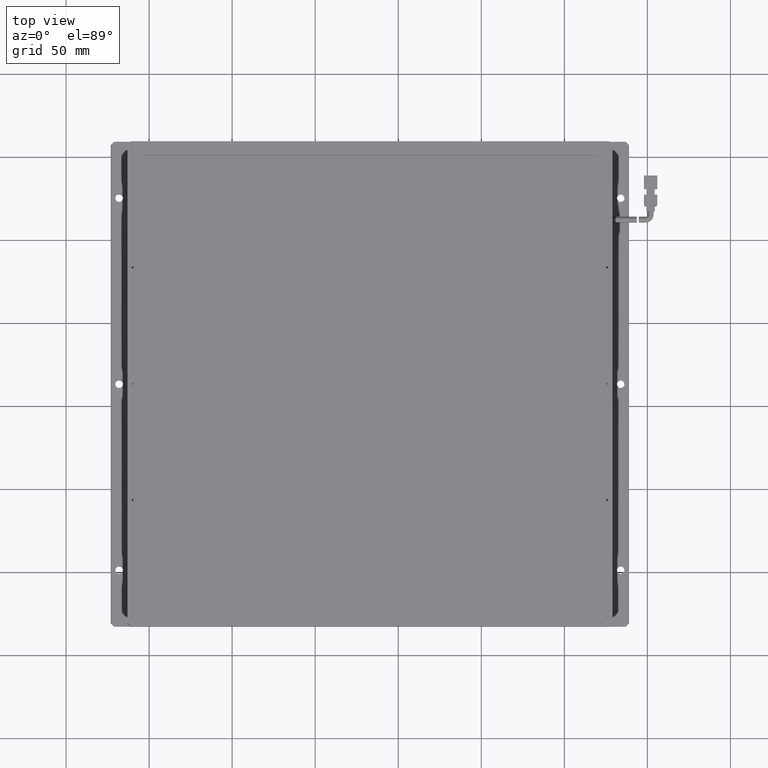
[diagram: clean part render]
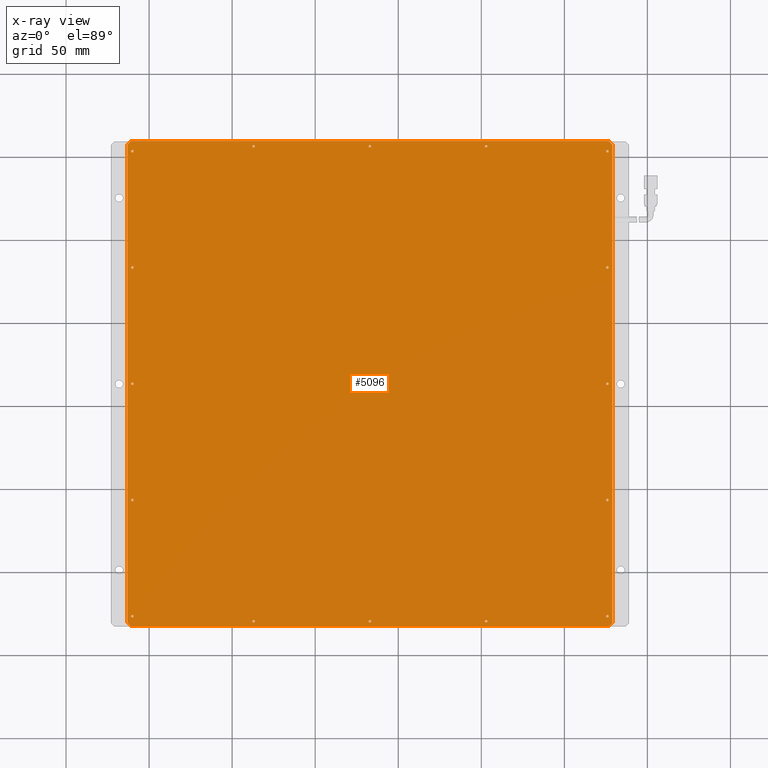
[diagram: x-ray — body ghosted, one internal face saturated and labeled with its STEP entity id]
A machine part, top view, then the same camera in x-ray: the body is ghosted and one INTERNAL B-rep face — a face not visible from any outside direction — is saturated and labeled: STEP entity #5096.
In plain terms, the highlighted planar face has unit normal (0, 0, 1).
Its self-contained STEP definition (entity closure, byte-faithful):
#110 = LINE ( 'NONE', #19636, #19128 ) ;
#151 = EDGE_CURVE ( 'NONE', #23612, #10936, #10040, .T. ) ;
#256 = VERTEX_POINT ( 'NONE', #816 ) ;
#290 = VERTEX_POINT ( 'NONE', #8711 ) ;
#338 = FACE_BOUND ( 'NONE', #7686, .T. ) ;
#375 = DIRECTION ( 'NONE',  ( 1.000000000000000000, 0.0000000000000000000, 0.0000000000000000000 ) ) ;
#421 = VERTEX_POINT ( 'NONE', #17582 ) ;
#505 = VERTEX_POINT ( 'NONE', #20858 ) ;
#527 = CIRCLE ( 'NONE', #2825, 0.7500000000000006700 ) ;
#615 = DIRECTION ( 'NONE',  ( -0.0000000000000000000, -0.0000000000000000000, -1.000000000000000000 ) ) ;
#816 = CARTESIAN_POINT ( 'NONE',  ( -37.83067712634187500, 156.2698045692266100, 6.999999999971803900 ) ) ;
#826 = VECTOR ( 'NONE', #13760, 1000.000000000000000 ) ;
#858 = VECTOR ( 'NONE', #15630, 1000.000000000000000 ) ;
#863 = DIRECTION ( 'NONE',  ( -0.0000000000000000000, -0.0000000000000000000, -1.000000000000000000 ) ) ;
#879 = LINE ( 'NONE', #3516, #7202 ) ;
#1151 = ORIENTED_EDGE ( 'NONE', *, *, #8839, .F. ) ;
#1153 = ORIENTED_EDGE ( 'NONE', *, *, #16438, .F. ) ;
#1160 = EDGE_CURVE ( 'NONE', #15163, #5271, #22270, .T. ) ;
#1362 = ORIENTED_EDGE ( 'NONE', *, *, #15199, .F. ) ;
#1429 = DIRECTION ( 'NONE',  ( -0.0000000000000000000, -0.0000000000000000000, -1.000000000000000000 ) ) ;
#1492 = CARTESIAN_POINT ( 'NONE',  ( -110.8306771263418700, 83.26980456922656500, 6.999999999971803900 ) ) ;
#1568 = CARTESIAN_POINT ( 'NONE',  ( -110.0806771263418700, 83.26980456922656500, 6.999999999971803900 ) ) ;
#1607 = DIRECTION ( 'NONE',  ( 1.000000000000000000, 0.0000000000000000000, 0.0000000000000000000 ) ) ;
#1615 = DIRECTION ( 'NONE',  ( -0.0000000000000000000, -0.0000000000000000000, -1.000000000000000000 ) ) ;
#1743 = CIRCLE ( 'NONE', #17880, 0.7500000000000006700 ) ;
#1765 = DIRECTION ( 'NONE',  ( 1.000000000000000000, 0.0000000000000000000, 0.0000000000000000000 ) ) ;
#1784 = CARTESIAN_POINT ( 'NONE',  ( 102.9193228736581000, -129.7301954307734500, 6.999999999971803900 ) ) ;
#1837 = VERTEX_POINT ( 'NONE', #10237 ) ;
#1840 = CARTESIAN_POINT ( 'NONE',  ( 32.91932287365813200, 156.2698045692266100, 6.999999999971803900 ) ) ;
#1872 = ORIENTED_EDGE ( 'NONE', *, *, #21537, .F. ) ;
#2010 = ORIENTED_EDGE ( 'NONE', *, *, #13443, .F. ) ;
#2018 = CARTESIAN_POINT ( 'NONE',  ( 102.9193228736581500, 156.2698045692266100, 6.999999999971803900 ) ) ;
#2198 = EDGE_CURVE ( 'NONE', #11041, #10745, #23068, .T. ) ;
#2295 = VERTEX_POINT ( 'NONE', #11895 ) ;
#2328 = AXIS2_PLACEMENT_3D ( 'NONE', #22302, #18618, #11212 ) ;
#2457 = CARTESIAN_POINT ( 'NONE',  ( 32.16932287365807500, -129.7301954307734500, 6.999999999971803900 ) ) ;
#2535 = EDGE_CURVE ( 'NONE', #18650, #15422, #12992, .T. ) ;
#2536 = VERTEX_POINT ( 'NONE', #15090 ) ;
#2616 = ORIENTED_EDGE ( 'NONE', *, *, #10011, .F. ) ;
#2707 = CARTESIAN_POINT ( 'NONE',  ( -113.0806771263418400, 159.2698045692266100, 6.999999999971805700 ) ) ;
#2761 = AXIS2_PLACEMENT_3D ( 'NONE', #5434, #18476, #11054 ) ;
#2825 = AXIS2_PLACEMENT_3D ( 'NONE', #19637, #15758, #2918 ) ;
#2837 = ORIENTED_EDGE ( 'NONE', *, *, #20909, .F. ) ;
#2918 = DIRECTION ( 'NONE',  ( 1.000000000000000000, 0.0000000000000000000, 0.0000000000000000000 ) ) ;
#2963 = ORIENTED_EDGE ( 'NONE', *, *, #18355, .F. ) ;
#2992 = DIRECTION ( 'NONE',  ( 1.000000000000000000, 0.0000000000000000000, 0.0000000000000000000 ) ) ;
#3118 = CIRCLE ( 'NONE', #5165, 0.7500000000000284200 ) ;
#3177 = CARTESIAN_POINT ( 'NONE',  ( -37.08067712634193200, -129.7301954307734500, 6.999999999971803900 ) ) ;
#3203 = CARTESIAN_POINT ( 'NONE',  ( -111.0806771263418700, -132.7301954307733900, 6.999999999971805700 ) ) ;
#3277 = CARTESIAN_POINT ( 'NONE',  ( 176.9193228736580700, 159.2698045692266400, 6.999999999971804800 ) ) ;
#3354 = CARTESIAN_POINT ( 'NONE',  ( -110.8306771263418700, 13.26980456922655100, 6.999999999971803900 ) ) ;
#3464 = ORIENTED_EDGE ( 'NONE', *, *, #2535, .F. ) ;
#3469 = AXIS2_PLACEMENT_3D ( 'NONE', #11527, #4125, #18610 ) ;
#3516 = CARTESIAN_POINT ( 'NONE',  ( 178.9193228736581300, 157.2698045692265500, 6.999999999971805700 ) ) ;
#3539 = EDGE_LOOP ( 'NONE', ( #10178, #12704 ) ) ;
#3688 = AXIS2_PLACEMENT_3D ( 'NONE', #1568, #18002, #6957 ) ;
#3803 = FACE_BOUND ( 'NONE', #12368, .T. ) ;
#3849 = LINE ( 'NONE', #21952, #4707 ) ;
#3888 = CIRCLE ( 'NONE', #9005, 0.7500000000000006700 ) ;
#3936 = DIRECTION ( 'NONE',  ( 1.000000000000000000, 0.0000000000000000000, 0.0000000000000000000 ) ) ;
#3943 = CARTESIAN_POINT ( 'NONE',  ( 176.6693228736581600, 153.2698045692265800, 6.999999999971803900 ) ) ;
#4047 = CARTESIAN_POINT ( 'NONE',  ( 175.1693228736581000, -56.73019543077345600, 6.999999999971803900 ) ) ;
#4067 = CIRCLE ( 'NONE', #14761, 0.7500000000000006700 ) ;
#4125 = DIRECTION ( 'NONE',  ( -0.0000000000000000000, -0.0000000000000000000, -1.000000000000000000 ) ) ;
#4310 = DIRECTION ( 'NONE',  ( -0.0000000000000000000, -0.0000000000000000000, -1.000000000000000000 ) ) ;
#4427 = DIRECTION ( 'NONE',  ( -0.0000000000000000000, -0.0000000000000000000, -1.000000000000000000 ) ) ;
#4552 = ORIENTED_EDGE ( 'NONE', *, *, #12481, .F. ) ;
#4669 = DIRECTION ( 'NONE',  ( 1.000000000000000000, 0.0000000000000000000, 0.0000000000000000000 ) ) ;
#4707 = VECTOR ( 'NONE', #10933, 1000.000000000000000 ) ;
#4729 = DIRECTION ( 'NONE',  ( 1.000000000000000000, 0.0000000000000000000, 0.0000000000000000000 ) ) ;
#4880 = CARTESIAN_POINT ( 'NONE',  ( 175.1693228736581600, 13.26980456922655100, 6.999999999971803900 ) ) ;
#4962 = FACE_BOUND ( 'NONE', #17099, .T. ) ;
#5050 = DIRECTION ( 'NONE',  ( -0.0000000000000000000, -0.0000000000000000000, -1.000000000000000000 ) ) ;
#5068 = EDGE_LOOP ( 'NONE', ( #3464, #10721 ) ) ;
#5096 = ADVANCED_FACE ( 'NONE', ( #15363, #9578, #5264, #22207, #338, #13640, #8684, #3803, #17364, #13929, #9290, #4962, #16498, #21934, #11579, #14792, #10420 ), #15629, .F. ) ;
#5165 = AXIS2_PLACEMENT_3D ( 'NONE', #16058, #19403, #13988 ) ;
#5264 = FACE_BOUND ( 'NONE', #8320, .T. ) ;
#5271 = VERTEX_POINT ( 'NONE', #22648 ) ;
#5289 = EDGE_CURVE ( 'NONE', #5719, #11237, #1743, .T. ) ;
#5434 = CARTESIAN_POINT ( 'NONE',  ( 175.9193228736581300, -56.73019543077345600, 6.999999999971803900 ) ) ;
#5444 = ORIENTED_EDGE ( 'NONE', *, *, #2198, .F. ) ;
#5458 = CARTESIAN_POINT ( 'NONE',  ( 102.1693228736581300, 156.2698045692266100, 6.999999999971803900 ) ) ;
#5533 = EDGE_LOOP ( 'NONE', ( #23905, #18412 ) ) ;
#5540 = AXIS2_PLACEMENT_3D ( 'NONE', #19277, #8415, #4729 ) ;
#5546 = CARTESIAN_POINT ( 'NONE',  ( -37.08067712634187500, 156.2698045692266100, 6.999999999971803900 ) ) ;
#5558 = EDGE_CURVE ( 'NONE', #15222, #2536, #21330, .T. ) ;
#5574 = EDGE_CURVE ( 'NONE', #10745, #11041, #15031, .T. ) ;
#5592 = CARTESIAN_POINT ( 'NONE',  ( 175.1693228736581600, 83.26980456922656500, 6.999999999971803900 ) ) ;
#5625 = AXIS2_PLACEMENT_3D ( 'NONE', #15497, #4427, #4669 ) ;
#5686 = CIRCLE ( 'NONE', #5625, 0.7500000000000006700 ) ;
#5719 = VERTEX_POINT ( 'NONE', #22467 ) ;
#5793 = CARTESIAN_POINT ( 'NONE',  ( 33.66932287365807500, -129.7301954307734500, 6.999999999971803900 ) ) ;
#5814 = EDGE_CURVE ( 'NONE', #17866, #21421, #23867, .T. ) ;
#5831 = AXIS2_PLACEMENT_3D ( 'NONE', #7155, #1429, #1607 ) ;
#5863 = VERTEX_POINT ( 'NONE', #6387 ) ;
#5933 = DIRECTION ( 'NONE',  ( 1.000000000000000000, 0.0000000000000000000, 0.0000000000000000000 ) ) ;
#6101 = DIRECTION ( 'NONE',  ( 1.000000000000000000, 0.0000000000000000000, 0.0000000000000000000 ) ) ;
#6172 = EDGE_CURVE ( 'NONE', #9215, #11572, #18112, .T. ) ;
#6173 = DIRECTION ( 'NONE',  ( -0.0000000000000000000, -1.000000000000000000, -0.0000000000000000000 ) ) ;
#6195 = CARTESIAN_POINT ( 'NONE',  ( -37.08067712634187500, 156.2698045692266100, 6.999999999971803900 ) ) ;
#6326 = CARTESIAN_POINT ( 'NONE',  ( -113.0806771263418400, -132.7301954307733900, 6.999999999971805700 ) ) ;
#6387 = CARTESIAN_POINT ( 'NONE',  ( 176.6693228736581300, -126.7301954307734600, 6.999999999971803900 ) ) ;
#6419 = ORIENTED_EDGE ( 'NONE', *, *, #15070, .F. ) ;
#6475 = CARTESIAN_POINT ( 'NONE',  ( -110.0806771263418700, -56.73019543077345600, 6.999999999971803900 ) ) ;
#6502 = LINE ( 'NONE', #6326, #12550 ) ;
#6721 = EDGE_CURVE ( 'NONE', #16388, #16433, #6502, .T. ) ;
#6857 = AXIS2_PLACEMENT_3D ( 'NONE', #15491, #11980, #10290 ) ;
#6913 = CARTESIAN_POINT ( 'NONE',  ( -113.0806771263418400, -130.7301954307733600, 6.999999999971805700 ) ) ;
#6917 = ORIENTED_EDGE ( 'NONE', *, *, #6172, .F. ) ;
#6957 = DIRECTION ( 'NONE',  ( 1.000000000000000000, 0.0000000000000000000, 0.0000000000000000000 ) ) ;
#7155 = CARTESIAN_POINT ( 'NONE',  ( 175.9193228736581300, -126.7301954307734600, 6.999999999971803900 ) ) ;
#7202 = VECTOR ( 'NONE', #22104, 1000.000000000000100 ) ;
#7217 = EDGE_LOOP ( 'NONE', ( #6917, #8117 ) ) ;
#7308 = CARTESIAN_POINT ( 'NONE',  ( -37.83067712634193200, -129.7301954307734500, 6.999999999971803900 ) ) ;
#7380 = DIRECTION ( 'NONE',  ( 1.000000000000000000, 0.0000000000000000000, 0.0000000000000000000 ) ) ;
#7433 = DIRECTION ( 'NONE',  ( 1.000000000000000000, 0.0000000000000000000, 0.0000000000000000000 ) ) ;
#7495 = CARTESIAN_POINT ( 'NONE',  ( -113.0806771263418700, -130.7301954307733600, 6.999999999971805700 ) ) ;
#7510 = DIRECTION ( 'NONE',  ( 1.000000000000000000, 0.0000000000000000000, 0.0000000000000000000 ) ) ;
#7686 = EDGE_LOOP ( 'NONE', ( #8014, #15721 ) ) ;
#7762 = CIRCLE ( 'NONE', #20454, 0.7500000000000006700 ) ;
#7827 = EDGE_CURVE ( 'NONE', #18749, #17247, #11034, .T. ) ;
#7849 = CIRCLE ( 'NONE', #2328, 0.7500000000000006700 ) ;
#7860 = DIRECTION ( 'NONE',  ( -0.0000000000000000000, -0.0000000000000000000, -1.000000000000000000 ) ) ;
#7927 = EDGE_CURVE ( 'NONE', #23567, #22539, #14815, .T. ) ;
#7957 = AXIS2_PLACEMENT_3D ( 'NONE', #12835, #12999, #21981 ) ;
#8014 = ORIENTED_EDGE ( 'NONE', *, *, #19080, .F. ) ;
#8048 = DIRECTION ( 'NONE',  ( -0.0000000000000000000, -0.0000000000000000000, -1.000000000000000000 ) ) ;
#8072 = EDGE_LOOP ( 'NONE', ( #19600, #19170 ) ) ;
#8117 = ORIENTED_EDGE ( 'NONE', *, *, #16646, .F. ) ;
#8127 = AXIS2_PLACEMENT_3D ( 'NONE', #16553, #9137, #22078 ) ;
#8206 = DIRECTION ( 'NONE',  ( 1.000000000000000000, 0.0000000000000000000, 0.0000000000000000000 ) ) ;
#8211 = EDGE_CURVE ( 'NONE', #2295, #11550, #21640, .T. ) ;
#8278 = DIRECTION ( 'NONE',  ( -0.0000000000000000000, -0.0000000000000000000, -1.000000000000000000 ) ) ;
#8320 = EDGE_LOOP ( 'NONE', ( #22591, #20705 ) ) ;
#8393 = CIRCLE ( 'NONE', #19001, 0.7500000000000006700 ) ;
#8397 = DIRECTION ( 'NONE',  ( -0.0000000000000000000, -0.0000000000000000000, -1.000000000000000000 ) ) ;
#8415 = DIRECTION ( 'NONE',  ( 0.0000000000000000000, 0.0000000000000000000, 1.000000000000000000 ) ) ;
#8463 = CARTESIAN_POINT ( 'NONE',  ( 175.9193228736581600, 153.2698045692265800, 6.999999999971803900 ) ) ;
#8564 = CARTESIAN_POINT ( 'NONE',  ( -109.3306771263418700, -126.7301954307734600, 6.999999999971803900 ) ) ;
#8640 = VECTOR ( 'NONE', #14893, 1000.000000000000000 ) ;
#8670 = AXIS2_PLACEMENT_3D ( 'NONE', #23239, #14131, #23156 ) ;
#8684 = FACE_BOUND ( 'NONE', #13980, .T. ) ;
#8711 = CARTESIAN_POINT ( 'NONE',  ( -36.33067712634187500, 156.2698045692266100, 6.999999999971803900 ) ) ;
#8776 = CARTESIAN_POINT ( 'NONE',  ( -110.0806771263418700, 153.2698045692265800, 6.999999999971803900 ) ) ;
#8839 = EDGE_CURVE ( 'NONE', #10936, #23612, #9500, .T. ) ;
#8913 = EDGE_CURVE ( 'NONE', #11237, #5719, #12639, .T. ) ;
#8917 = CIRCLE ( 'NONE', #22906, 0.7500000000000006700 ) ;
#8926 = VERTEX_POINT ( 'NONE', #4047 ) ;
#9005 = AXIS2_PLACEMENT_3D ( 'NONE', #8776, #15154, #7510 ) ;
#9137 = DIRECTION ( 'NONE',  ( -0.0000000000000000000, -0.0000000000000000000, -1.000000000000000000 ) ) ;
#9153 = ORIENTED_EDGE ( 'NONE', *, *, #18342, .F. ) ;
#9215 = VERTEX_POINT ( 'NONE', #12949 ) ;
#9290 = FACE_BOUND ( 'NONE', #13888, .T. ) ;
#9347 = ORIENTED_EDGE ( 'NONE', *, *, #21149, .F. ) ;
#9415 = CARTESIAN_POINT ( 'NONE',  ( -110.0806771263418700, -56.73019543077345600, 6.999999999971803900 ) ) ;
#9500 = CIRCLE ( 'NONE', #7957, 0.7500000000000006700 ) ;
#9578 = FACE_BOUND ( 'NONE', #18362, .T. ) ;
#9664 = CARTESIAN_POINT ( 'NONE',  ( 102.9193228736581500, 156.2698045692266100, 6.999999999971803900 ) ) ;
#9701 = CARTESIAN_POINT ( 'NONE',  ( 176.9193228736581900, -132.7301954307733900, 6.999999999971805700 ) ) ;
#9716 = CARTESIAN_POINT ( 'NONE',  ( 175.1693228736581600, 153.2698045692265800, 6.999999999971803900 ) ) ;
#9721 = CARTESIAN_POINT ( 'NONE',  ( 102.9193228736581000, -129.7301954307734500, 6.999999999971803900 ) ) ;
#9737 = ORIENTED_EDGE ( 'NONE', *, *, #7927, .F. ) ;
#9816 = CIRCLE ( 'NONE', #15670, 0.7500000000000006700 ) ;
#10011 = EDGE_CURVE ( 'NONE', #10046, #16388, #110, .T. ) ;
#10040 = CIRCLE ( 'NONE', #18376, 0.7500000000000006700 ) ;
#10046 = VERTEX_POINT ( 'NONE', #17672 ) ;
#10058 = DIRECTION ( 'NONE',  ( 1.000000000000000000, 0.0000000000000000000, 0.0000000000000000000 ) ) ;
#10101 = AXIS2_PLACEMENT_3D ( 'NONE', #1784, #14650, #7433 ) ;
#10178 = ORIENTED_EDGE ( 'NONE', *, *, #8211, .F. ) ;
#10186 = ORIENTED_EDGE ( 'NONE', *, *, #151, .F. ) ;
#10224 = ORIENTED_EDGE ( 'NONE', *, *, #1160, .F. ) ;
#10237 = CARTESIAN_POINT ( 'NONE',  ( 178.9193228736581600, 157.2698045692265800, 6.999999999971805700 ) ) ;
#10290 = DIRECTION ( 'NONE',  ( 1.000000000000000000, 0.0000000000000000000, 0.0000000000000000000 ) ) ;
#10420 = FACE_BOUND ( 'NONE', #5533, .T. ) ;
#10504 = ORIENTED_EDGE ( 'NONE', *, *, #5574, .F. ) ;
#10685 = CARTESIAN_POINT ( 'NONE',  ( 102.1693228736581000, -129.7301954307734500, 6.999999999971803900 ) ) ;
#10691 = VERTEX_POINT ( 'NONE', #10685 ) ;
#10721 = ORIENTED_EDGE ( 'NONE', *, *, #14348, .F. ) ;
#10745 = VERTEX_POINT ( 'NONE', #1492 ) ;
#10749 = DIRECTION ( 'NONE',  ( -0.0000000000000000000, -0.0000000000000000000, -1.000000000000000000 ) ) ;
#10795 = CARTESIAN_POINT ( 'NONE',  ( -110.0806771263418700, -126.7301954307734600, 6.999999999971803900 ) ) ;
#10933 = DIRECTION ( 'NONE',  ( 0.0000000000000000000, 1.000000000000000000, 0.0000000000000000000 ) ) ;
#10936 = VERTEX_POINT ( 'NONE', #9716 ) ;
#11034 = CIRCLE ( 'NONE', #11939, 0.7500000000000006700 ) ;
#11041 = VERTEX_POINT ( 'NONE', #22961 ) ;
#11054 = DIRECTION ( 'NONE',  ( 1.000000000000000000, 0.0000000000000000000, 0.0000000000000000000 ) ) ;
#11166 = ORIENTED_EDGE ( 'NONE', *, *, #16931, .F. ) ;
#11197 = EDGE_LOOP ( 'NONE', ( #9347, #1872 ) ) ;
#11212 = DIRECTION ( 'NONE',  ( 1.000000000000000000, 0.0000000000000000000, 0.0000000000000000000 ) ) ;
#11234 = AXIS2_PLACEMENT_3D ( 'NONE', #3177, #5050, #23776 ) ;
#11237 = VERTEX_POINT ( 'NONE', #5592 ) ;
#11248 = DIRECTION ( 'NONE',  ( -0.0000000000000000000, -0.0000000000000000000, -1.000000000000000000 ) ) ;
#11322 = EDGE_CURVE ( 'NONE', #17247, #18749, #7849, .T. ) ;
#11436 = VERTEX_POINT ( 'NONE', #3277 ) ;
#11460 = VERTEX_POINT ( 'NONE', #19530 ) ;
#11527 = CARTESIAN_POINT ( 'NONE',  ( 175.9193228736581600, 83.26980456922656500, 6.999999999971803900 ) ) ;
#11550 = VERTEX_POINT ( 'NONE', #3354 ) ;
#11558 = EDGE_CURVE ( 'NONE', #11550, #2295, #16183, .T. ) ;
#11572 = VERTEX_POINT ( 'NONE', #21215 ) ;
#11579 = FACE_BOUND ( 'NONE', #11197, .T. ) ;
#11706 = ORIENTED_EDGE ( 'NONE', *, *, #6721, .F. ) ;
#11822 = VERTEX_POINT ( 'NONE', #12843 ) ;
#11892 = DIRECTION ( 'NONE',  ( 1.000000000000000000, 0.0000000000000000000, 0.0000000000000000000 ) ) ;
#11895 = CARTESIAN_POINT ( 'NONE',  ( -109.3306771263418700, 13.26980456922655100, 6.999999999971803900 ) ) ;
#11939 = AXIS2_PLACEMENT_3D ( 'NONE', #22656, #615, #375 ) ;
#11980 = DIRECTION ( 'NONE',  ( -0.0000000000000000000, -0.0000000000000000000, -1.000000000000000000 ) ) ;
#12010 = EDGE_CURVE ( 'NONE', #2536, #15222, #527, .T. ) ;
#12073 = EDGE_CURVE ( 'NONE', #8926, #421, #3118, .T. ) ;
#12261 = ORIENTED_EDGE ( 'NONE', *, *, #20838, .F. ) ;
#12330 = ORIENTED_EDGE ( 'NONE', *, *, #13891, .F. ) ;
#12368 = EDGE_LOOP ( 'NONE', ( #5444, #10504 ) ) ;
#12481 = EDGE_CURVE ( 'NONE', #22539, #23567, #5686, .T. ) ;
#12550 = VECTOR ( 'NONE', #6173, 1000.000000000000000 ) ;
#12639 = CIRCLE ( 'NONE', #3469, 0.7500000000000006700 ) ;
#12704 = ORIENTED_EDGE ( 'NONE', *, *, #11558, .F. ) ;
#12835 = CARTESIAN_POINT ( 'NONE',  ( 175.9193228736581600, 153.2698045692265800, 6.999999999971803900 ) ) ;
#12843 = CARTESIAN_POINT ( 'NONE',  ( -110.8306771263418700, -126.7301954307734600, 6.999999999971803900 ) ) ;
#12949 = CARTESIAN_POINT ( 'NONE',  ( 33.66932287365813200, 156.2698045692266100, 6.999999999971803900 ) ) ;
#12992 = CIRCLE ( 'NONE', #16608, 0.7500000000000006700 ) ;
#12999 = DIRECTION ( 'NONE',  ( -0.0000000000000000000, -0.0000000000000000000, -1.000000000000000000 ) ) ;
#13125 = CARTESIAN_POINT ( 'NONE',  ( 176.6693228736581600, 13.26980456922655100, 6.999999999971803900 ) ) ;
#13263 = CARTESIAN_POINT ( 'NONE',  ( -113.0806771263418400, -132.7301954307733900, 6.999999999971805700 ) ) ;
#13443 = EDGE_CURVE ( 'NONE', #11822, #21337, #14749, .T. ) ;
#13469 = AXIS2_PLACEMENT_3D ( 'NONE', #1840, #14789, #18451 ) ;
#13589 = EDGE_CURVE ( 'NONE', #20861, #17866, #23309, .T. ) ;
#13640 = FACE_BOUND ( 'NONE', #18699, .T. ) ;
#13760 = DIRECTION ( 'NONE',  ( 0.7071067811865328100, 0.7071067811865622300, 0.0000000000000000000 ) ) ;
#13786 = DIRECTION ( 'NONE',  ( -0.0000000000000000000, -0.0000000000000000000, -1.000000000000000000 ) ) ;
#13794 = CARTESIAN_POINT ( 'NONE',  ( 32.91932287365807500, -129.7301954307734500, 6.999999999971803900 ) ) ;
#13888 = EDGE_LOOP ( 'NONE', ( #17548, #2010 ) ) ;
#13891 = EDGE_CURVE ( 'NONE', #11460, #5863, #16976, .T. ) ;
#13929 = FACE_BOUND ( 'NONE', #5068, .T. ) ;
#13980 = EDGE_LOOP ( 'NONE', ( #11166, #10224 ) ) ;
#13988 = DIRECTION ( 'NONE',  ( 1.000000000000000000, 0.0000000000000000000, 0.0000000000000000000 ) ) ;
#14131 = DIRECTION ( 'NONE',  ( -0.0000000000000000000, -0.0000000000000000000, -1.000000000000000000 ) ) ;
#14300 = CARTESIAN_POINT ( 'NONE',  ( 176.9193228736581600, -132.7301954307733600, 6.999999999971805700 ) ) ;
#14337 = ORIENTED_EDGE ( 'NONE', *, *, #21231, .F. ) ;
#14348 = EDGE_CURVE ( 'NONE', #15422, #18650, #22916, .T. ) ;
#14650 = DIRECTION ( 'NONE',  ( -0.0000000000000000000, -0.0000000000000000000, -1.000000000000000000 ) ) ;
#14695 = CIRCLE ( 'NONE', #2761, 0.7500000000000284200 ) ;
#14749 = CIRCLE ( 'NONE', #8127, 0.7500000000000006700 ) ;
#14761 = AXIS2_PLACEMENT_3D ( 'NONE', #5546, #21793, #7380 ) ;
#14789 = DIRECTION ( 'NONE',  ( -0.0000000000000000000, -0.0000000000000000000, -1.000000000000000000 ) ) ;
#14792 = FACE_BOUND ( 'NONE', #20724, .T. ) ;
#14815 = CIRCLE ( 'NONE', #20723, 0.7500000000000006700 ) ;
#14881 = DIRECTION ( 'NONE',  ( 1.000000000000000000, 0.0000000000000000000, 0.0000000000000000000 ) ) ;
#14893 = DIRECTION ( 'NONE',  ( 1.000000000000000000, 0.0000000000000000000, 0.0000000000000000000 ) ) ;
#15012 = CIRCLE ( 'NONE', #10101, 0.7500000000000006700 ) ;
#15031 = CIRCLE ( 'NONE', #3688, 0.7500000000000006700 ) ;
#15070 = EDGE_CURVE ( 'NONE', #16433, #20861, #22537, .T. ) ;
#15090 = CARTESIAN_POINT ( 'NONE',  ( -36.33067712634193200, -129.7301954307734500, 6.999999999971803900 ) ) ;
#15154 = DIRECTION ( 'NONE',  ( -0.0000000000000000000, -0.0000000000000000000, -1.000000000000000000 ) ) ;
#15163 = VERTEX_POINT ( 'NONE', #16364 ) ;
#15199 = EDGE_CURVE ( 'NONE', #21421, #1837, #3849, .T. ) ;
#15222 = VERTEX_POINT ( 'NONE', #7308 ) ;
#15328 = CARTESIAN_POINT ( 'NONE',  ( 175.9193228736581600, 83.26980456922656500, 6.999999999971803900 ) ) ;
#15363 = FACE_OUTER_BOUND ( 'NONE', #19757, .T. ) ;
#15404 = CARTESIAN_POINT ( 'NONE',  ( -110.8306771263418700, -56.73019543077345600, 6.999999999971803900 ) ) ;
#15422 = VERTEX_POINT ( 'NONE', #15404 ) ;
#15472 = DIRECTION ( 'NONE',  ( -0.0000000000000000000, -0.0000000000000000000, -1.000000000000000000 ) ) ;
#15491 = CARTESIAN_POINT ( 'NONE',  ( -110.0806771263418700, 83.26980456922656500, 6.999999999971803900 ) ) ;
#15497 = CARTESIAN_POINT ( 'NONE',  ( 32.91932287365807500, -129.7301954307734500, 6.999999999971803900 ) ) ;
#15629 = PLANE ( 'NONE',  #5540 ) ;
#15630 = DIRECTION ( 'NONE',  ( -1.000000000000000000, -0.0000000000000000000, -0.0000000000000000000 ) ) ;
#15670 = AXIS2_PLACEMENT_3D ( 'NONE', #9721, #15472, #18956 ) ;
#15721 = ORIENTED_EDGE ( 'NONE', *, *, #12073, .F. ) ;
#15747 = CARTESIAN_POINT ( 'NONE',  ( 103.6693228736581500, 156.2698045692266100, 6.999999999971803900 ) ) ;
#15758 = DIRECTION ( 'NONE',  ( -0.0000000000000000000, -0.0000000000000000000, -1.000000000000000000 ) ) ;
#16058 = CARTESIAN_POINT ( 'NONE',  ( 175.9193228736581300, -56.73019543077345600, 6.999999999971803900 ) ) ;
#16183 = CIRCLE ( 'NONE', #20849, 0.7500000000000006700 ) ;
#16364 = CARTESIAN_POINT ( 'NONE',  ( -110.8306771263418700, 153.2698045692265800, 6.999999999971803900 ) ) ;
#16388 = VERTEX_POINT ( 'NONE', #23924 ) ;
#16433 = VERTEX_POINT ( 'NONE', #7495 ) ;
#16438 = EDGE_CURVE ( 'NONE', #16574, #19619, #22593, .T. ) ;
#16498 = FACE_BOUND ( 'NONE', #7217, .T. ) ;
#16500 = AXIS2_PLACEMENT_3D ( 'NONE', #10795, #1615, #1765 ) ;
#16553 = CARTESIAN_POINT ( 'NONE',  ( -110.0806771263418700, -126.7301954307734600, 6.999999999971803900 ) ) ;
#16574 = VERTEX_POINT ( 'NONE', #15747 ) ;
#16608 = AXIS2_PLACEMENT_3D ( 'NONE', #9415, #11248, #3936 ) ;
#16646 = EDGE_CURVE ( 'NONE', #11572, #9215, #22017, .T. ) ;
#16931 = EDGE_CURVE ( 'NONE', #5271, #15163, #3888, .T. ) ;
#16976 = CIRCLE ( 'NONE', #5831, 0.7500000000000006700 ) ;
#17099 = EDGE_LOOP ( 'NONE', ( #1153, #2963 ) ) ;
#17213 = DIRECTION ( 'NONE',  ( 1.000000000000000000, 0.0000000000000000000, 0.0000000000000000000 ) ) ;
#17247 = VERTEX_POINT ( 'NONE', #4880 ) ;
#17364 = FACE_BOUND ( 'NONE', #3539, .T. ) ;
#17548 = ORIENTED_EDGE ( 'NONE', *, *, #22958, .F. ) ;
#17582 = CARTESIAN_POINT ( 'NONE',  ( 176.6693228736581600, -56.73019543077345600, 6.999999999971803900 ) ) ;
#17672 = CARTESIAN_POINT ( 'NONE',  ( -111.0806771263417500, 159.2698045692265800, 6.999999999971805700 ) ) ;
#17866 = VERTEX_POINT ( 'NONE', #14300 ) ;
#17880 = AXIS2_PLACEMENT_3D ( 'NONE', #15328, #13786, #6101 ) ;
#17955 = AXIS2_PLACEMENT_3D ( 'NONE', #18870, #7860, #5933 ) ;
#17971 = ORIENTED_EDGE ( 'NONE', *, *, #13589, .F. ) ;
#18002 = DIRECTION ( 'NONE',  ( -0.0000000000000000000, -0.0000000000000000000, -1.000000000000000000 ) ) ;
#18112 = CIRCLE ( 'NONE', #13469, 0.7500000000000006700 ) ;
#18342 = EDGE_CURVE ( 'NONE', #256, #290, #7762, .T. ) ;
#18355 = EDGE_CURVE ( 'NONE', #19619, #16574, #8917, .T. ) ;
#18362 = EDGE_LOOP ( 'NONE', ( #10186, #1151 ) ) ;
#18376 = AXIS2_PLACEMENT_3D ( 'NONE', #8463, #8397, #2992 ) ;
#18412 = ORIENTED_EDGE ( 'NONE', *, *, #5558, .F. ) ;
#18451 = DIRECTION ( 'NONE',  ( 1.000000000000000000, 0.0000000000000000000, 0.0000000000000000000 ) ) ;
#18476 = DIRECTION ( 'NONE',  ( -0.0000000000000000000, -0.0000000000000000000, -1.000000000000000000 ) ) ;
#18491 = AXIS2_PLACEMENT_3D ( 'NONE', #6475, #4310, #17213 ) ;
#18608 = EDGE_LOOP ( 'NONE', ( #20796, #9153 ) ) ;
#18610 = DIRECTION ( 'NONE',  ( 1.000000000000000000, 0.0000000000000000000, 0.0000000000000000000 ) ) ;
#18618 = DIRECTION ( 'NONE',  ( -0.0000000000000000000, -0.0000000000000000000, -1.000000000000000000 ) ) ;
#18650 = VERTEX_POINT ( 'NONE', #22166 ) ;
#18686 = AXIS2_PLACEMENT_3D ( 'NONE', #2018, #23837, #14881 ) ;
#18699 = EDGE_LOOP ( 'NONE', ( #12261, #12330 ) ) ;
#18749 = VERTEX_POINT ( 'NONE', #13125 ) ;
#18870 = CARTESIAN_POINT ( 'NONE',  ( -110.0806771263418700, 153.2698045692265800, 6.999999999971803900 ) ) ;
#18956 = DIRECTION ( 'NONE',  ( 1.000000000000000000, 0.0000000000000000000, 0.0000000000000000000 ) ) ;
#19001 = AXIS2_PLACEMENT_3D ( 'NONE', #21084, #863, #10058 ) ;
#19080 = EDGE_CURVE ( 'NONE', #421, #8926, #14695, .T. ) ;
#19128 = VECTOR ( 'NONE', #23023, 1000.000000000000000 ) ;
#19137 = DIRECTION ( 'NONE',  ( 1.000000000000000000, 0.0000000000000000000, 0.0000000000000000000 ) ) ;
#19170 = ORIENTED_EDGE ( 'NONE', *, *, #11322, .F. ) ;
#19277 = CARTESIAN_POINT ( 'NONE',  ( -113.0806771263418400, -132.7301954307733900, 6.999999999971805700 ) ) ;
#19403 = DIRECTION ( 'NONE',  ( -0.0000000000000000000, -0.0000000000000000000, -1.000000000000000000 ) ) ;
#19530 = CARTESIAN_POINT ( 'NONE',  ( 175.1693228736581300, -126.7301954307734600, 6.999999999971803900 ) ) ;
#19600 = ORIENTED_EDGE ( 'NONE', *, *, #7827, .F. ) ;
#19619 = VERTEX_POINT ( 'NONE', #5458 ) ;
#19636 = CARTESIAN_POINT ( 'NONE',  ( -111.0806771263418700, 159.2698045692265500, 6.999999999971805700 ) ) ;
#19637 = CARTESIAN_POINT ( 'NONE',  ( -37.08067712634193200, -129.7301954307734500, 6.999999999971803900 ) ) ;
#19658 = CARTESIAN_POINT ( 'NONE',  ( -110.0806771263418700, 13.26980456922655100, 6.999999999971803900 ) ) ;
#19666 = CARTESIAN_POINT ( 'NONE',  ( 178.9193228736581000, -130.7301954307733900, 6.999999999971805700 ) ) ;
#19757 = EDGE_LOOP ( 'NONE', ( #2616, #14337, #2837, #1362, #22317, #17971, #6419, #11706 ) ) ;
#20253 = VECTOR ( 'NONE', #23234, 999.9999999999998900 ) ;
#20454 = AXIS2_PLACEMENT_3D ( 'NONE', #6195, #8048, #19137 ) ;
#20705 = ORIENTED_EDGE ( 'NONE', *, *, #8913, .F. ) ;
#20723 = AXIS2_PLACEMENT_3D ( 'NONE', #13794, #8278, #11892 ) ;
#20724 = EDGE_LOOP ( 'NONE', ( #9737, #4552 ) ) ;
#20796 = ORIENTED_EDGE ( 'NONE', *, *, #20980, .F. ) ;
#20838 = EDGE_CURVE ( 'NONE', #5863, #11460, #8393, .T. ) ;
#20849 = AXIS2_PLACEMENT_3D ( 'NONE', #19658, #23188, #21296 ) ;
#20858 = CARTESIAN_POINT ( 'NONE',  ( 103.6693228736581000, -129.7301954307734500, 6.999999999971803900 ) ) ;
#20861 = VERTEX_POINT ( 'NONE', #3203 ) ;
#20909 = EDGE_CURVE ( 'NONE', #1837, #11436, #879, .T. ) ;
#20980 = EDGE_CURVE ( 'NONE', #290, #256, #4067, .T. ) ;
#21084 = CARTESIAN_POINT ( 'NONE',  ( 175.9193228736581300, -126.7301954307734600, 6.999999999971803900 ) ) ;
#21149 = EDGE_CURVE ( 'NONE', #505, #10691, #9816, .T. ) ;
#21163 = CIRCLE ( 'NONE', #16500, 0.7500000000000006700 ) ;
#21215 = CARTESIAN_POINT ( 'NONE',  ( 32.16932287365813200, 156.2698045692266100, 6.999999999971803900 ) ) ;
#21231 = EDGE_CURVE ( 'NONE', #11436, #10046, #23923, .T. ) ;
#21296 = DIRECTION ( 'NONE',  ( 1.000000000000000000, 0.0000000000000000000, 0.0000000000000000000 ) ) ;
#21330 = CIRCLE ( 'NONE', #11234, 0.7500000000000006700 ) ;
#21337 = VERTEX_POINT ( 'NONE', #8564 ) ;
#21421 = VERTEX_POINT ( 'NONE', #19666 ) ;
#21537 = EDGE_CURVE ( 'NONE', #10691, #505, #15012, .T. ) ;
#21640 = CIRCLE ( 'NONE', #21659, 0.7500000000000006700 ) ;
#21659 = AXIS2_PLACEMENT_3D ( 'NONE', #21778, #10749, #23626 ) ;
#21778 = CARTESIAN_POINT ( 'NONE',  ( -110.0806771263418700, 13.26980456922655100, 6.999999999971803900 ) ) ;
#21793 = DIRECTION ( 'NONE',  ( -0.0000000000000000000, -0.0000000000000000000, -1.000000000000000000 ) ) ;
#21934 = FACE_BOUND ( 'NONE', #18608, .T. ) ;
#21952 = CARTESIAN_POINT ( 'NONE',  ( 178.9193228736581300, -132.7301954307733900, 6.999999999971805700 ) ) ;
#21981 = DIRECTION ( 'NONE',  ( 1.000000000000000000, 0.0000000000000000000, 0.0000000000000000000 ) ) ;
#22017 = CIRCLE ( 'NONE', #8670, 0.7500000000000006700 ) ;
#22078 = DIRECTION ( 'NONE',  ( 1.000000000000000000, 0.0000000000000000000, 0.0000000000000000000 ) ) ;
#22104 = DIRECTION ( 'NONE',  ( -0.7071067811865474600, 0.7071067811865474600, 0.0000000000000000000 ) ) ;
#22166 = CARTESIAN_POINT ( 'NONE',  ( -109.3306771263418700, -56.73019543077345600, 6.999999999971803900 ) ) ;
#22207 = FACE_BOUND ( 'NONE', #8072, .T. ) ;
#22270 = CIRCLE ( 'NONE', #17955, 0.7500000000000006700 ) ;
#22302 = CARTESIAN_POINT ( 'NONE',  ( 175.9193228736581600, 13.26980456922655100, 6.999999999971803900 ) ) ;
#22317 = ORIENTED_EDGE ( 'NONE', *, *, #5814, .F. ) ;
#22467 = CARTESIAN_POINT ( 'NONE',  ( 176.6693228736581600, 83.26980456922656500, 6.999999999971803900 ) ) ;
#22503 = DIRECTION ( 'NONE',  ( -0.0000000000000000000, -0.0000000000000000000, -1.000000000000000000 ) ) ;
#22537 = LINE ( 'NONE', #6913, #20253 ) ;
#22539 = VERTEX_POINT ( 'NONE', #2457 ) ;
#22591 = ORIENTED_EDGE ( 'NONE', *, *, #5289, .F. ) ;
#22593 = CIRCLE ( 'NONE', #18686, 0.7500000000000006700 ) ;
#22648 = CARTESIAN_POINT ( 'NONE',  ( -109.3306771263418700, 153.2698045692265800, 6.999999999971803900 ) ) ;
#22656 = CARTESIAN_POINT ( 'NONE',  ( 175.9193228736581600, 13.26980456922655100, 6.999999999971803900 ) ) ;
#22906 = AXIS2_PLACEMENT_3D ( 'NONE', #9664, #22503, #8206 ) ;
#22916 = CIRCLE ( 'NONE', #18491, 0.7500000000000006700 ) ;
#22958 = EDGE_CURVE ( 'NONE', #21337, #11822, #21163, .T. ) ;
#22961 = CARTESIAN_POINT ( 'NONE',  ( -109.3306771263418700, 83.26980456922656500, 6.999999999971803900 ) ) ;
#23023 = DIRECTION ( 'NONE',  ( -0.7071067811865426900, -0.7071067811865524600, 0.0000000000000000000 ) ) ;
#23068 = CIRCLE ( 'NONE', #6857, 0.7500000000000006700 ) ;
#23156 = DIRECTION ( 'NONE',  ( 1.000000000000000000, 0.0000000000000000000, 0.0000000000000000000 ) ) ;
#23188 = DIRECTION ( 'NONE',  ( -0.0000000000000000000, -0.0000000000000000000, -1.000000000000000000 ) ) ;
#23234 = DIRECTION ( 'NONE',  ( 0.7071067811865376900, -0.7071067811865574500, 0.0000000000000000000 ) ) ;
#23239 = CARTESIAN_POINT ( 'NONE',  ( 32.91932287365813200, 156.2698045692266100, 6.999999999971803900 ) ) ;
#23309 = LINE ( 'NONE', #13263, #8640 ) ;
#23567 = VERTEX_POINT ( 'NONE', #5793 ) ;
#23612 = VERTEX_POINT ( 'NONE', #3943 ) ;
#23626 = DIRECTION ( 'NONE',  ( 1.000000000000000000, 0.0000000000000000000, 0.0000000000000000000 ) ) ;
#23776 = DIRECTION ( 'NONE',  ( 1.000000000000000000, 0.0000000000000000000, 0.0000000000000000000 ) ) ;
#23837 = DIRECTION ( 'NONE',  ( -0.0000000000000000000, -0.0000000000000000000, -1.000000000000000000 ) ) ;
#23867 = LINE ( 'NONE', #9701, #826 ) ;
#23905 = ORIENTED_EDGE ( 'NONE', *, *, #12010, .F. ) ;
#23923 = LINE ( 'NONE', #2707, #858 ) ;
#23924 = CARTESIAN_POINT ( 'NONE',  ( -113.0806771263418100, 157.2698045692265800, 6.999999999971804800 ) ) ;